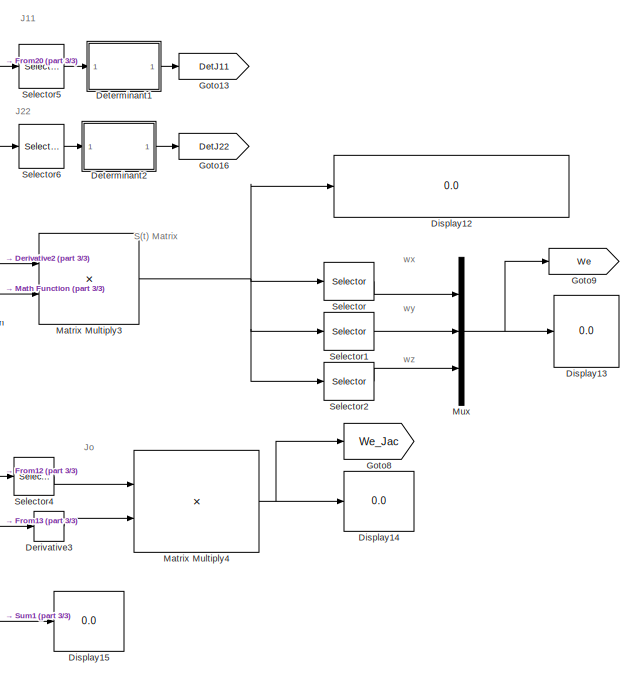
[diagram: root canvas - part 1/3, right side, full height]
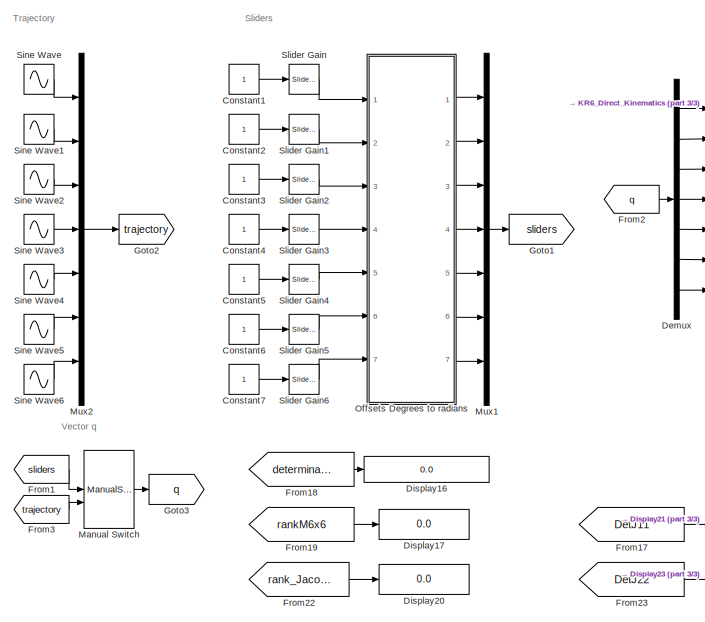
[diagram: root canvas - part 2/3, left side, full height]
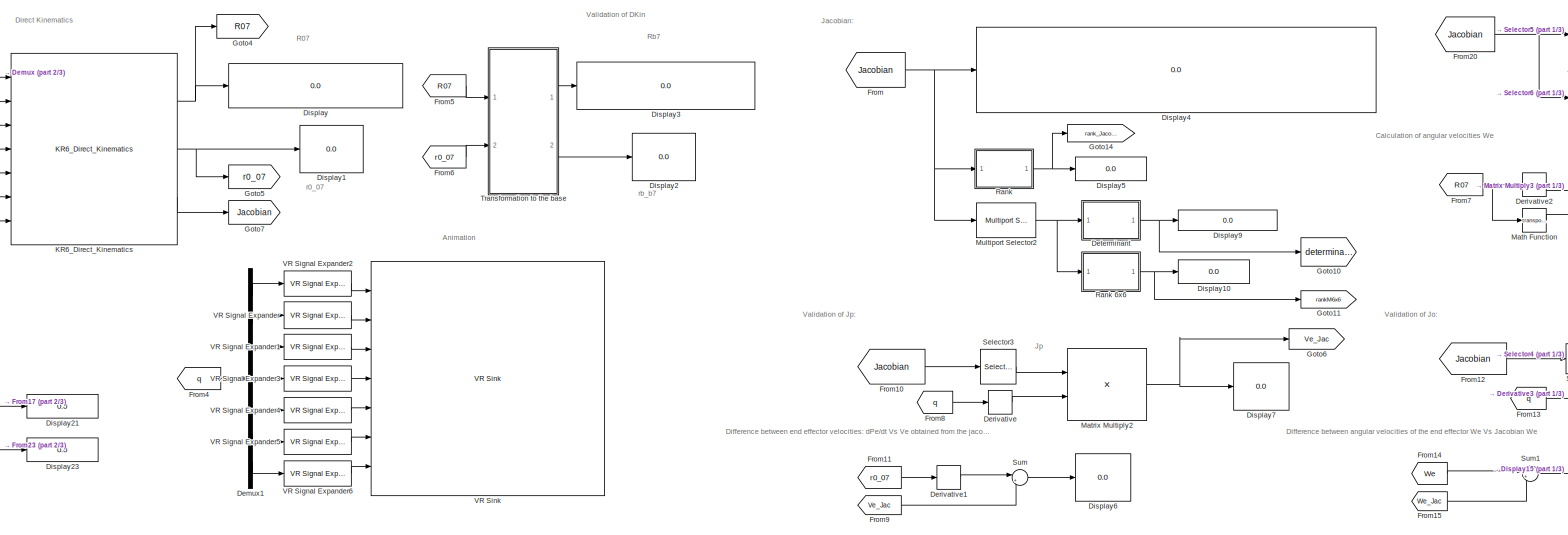
[diagram: root canvas - part 3/3, center side, full height]
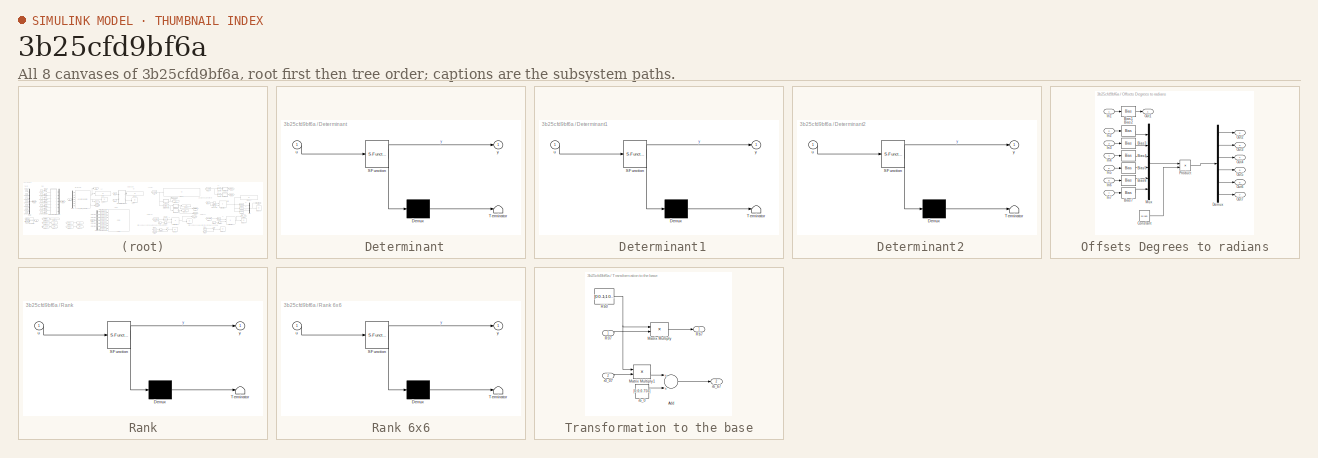
[diagram: thumbnail index - all 8 canvases of the model, root first then tree order]
MODEL slx_3b25cfd9bf6a
KIND model
CONFIG AbsTol = auto
CONFIG EnableMultiTasking = off
CONFIG FixedStep = 1e-6
CONFIG MaxStep = auto
CONFIG MinStep = auto
CONFIG RelTol = 1e-3
CONFIG SampleTimeConstraint = Unconstrained
CONFIG Solver = VariableStepAuto
CONFIG SolverName = VariableStepAuto
CONFIG StartTime = 0.0
CONFIG StopTime = inf
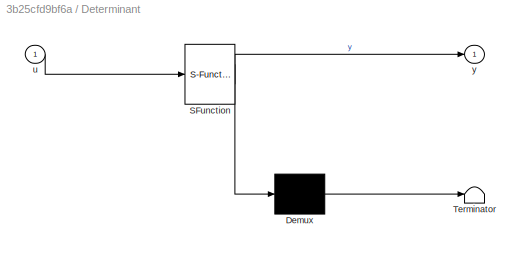
BLOCK [SubSystem]  Determinant
  ErrorFcn = Stateflow.Translate.translate
  PermitHierarchicalResolution = ExplicitOnly
  Ports = [1, 1]
  RequestExecContextInheritance = off
  SFBlockType = MATLAB Function
  TreatAsAtomicUnit = on
BLOCK [Demux]  Determinant/ Demux 
  Outputs = 1
  Ports = [1, 1]
BLOCK [S-Function]  Determinant/ SFunction 
  EnableBusSupport = on
  FunctionName = sf_sfun
  PortCounts = [1 2]
  Ports = [1, 2]
  SFcnIsStateOwnerBlock = off
  SFunctionDeploymentMode = off
  Tag = Stateflow S-Function KR6_JacobianValidation 1
BLOCK [Terminator]  Determinant/ Terminator 
BLOCK [Inport]  Determinant/u
  IconDisplay = Port number
BLOCK [Outport]  Determinant/y
  IconDisplay = Port number
BLOCK [SubSystem]  Determinant1
  ErrorFcn = Stateflow.Translate.translate
  PermitHierarchicalResolution = ExplicitOnly
  Ports = [1, 1]
  RequestExecContextInheritance = off
  SFBlockType = MATLAB Function
  TreatAsAtomicUnit = on
BLOCK [Demux]  Determinant1/ Demux 
  Outputs = 1
  Ports = [1, 1]
BLOCK [S-Function]  Determinant1/ SFunction 
  EnableBusSupport = on
  FunctionName = sf_sfun
  PortCounts = [1 2]
  Ports = [1, 2]
  SFcnIsStateOwnerBlock = off
  SFunctionDeploymentMode = off
  Tag = Stateflow S-Function KR6_JacobianValidation 5
BLOCK [Terminator]  Determinant1/ Terminator 
BLOCK [Inport]  Determinant1/u
  IconDisplay = Port number
BLOCK [Outport]  Determinant1/y
  IconDisplay = Port number
BLOCK [SubSystem]  Determinant2
  ErrorFcn = Stateflow.Translate.translate
  PermitHierarchicalResolution = ExplicitOnly
  Ports = [1, 1]
  RequestExecContextInheritance = off
  SFBlockType = MATLAB Function
  TreatAsAtomicUnit = on
BLOCK [Demux]  Determinant2/ Demux 
  Outputs = 1
  Ports = [1, 1]
BLOCK [S-Function]  Determinant2/ SFunction 
  EnableBusSupport = on
  FunctionName = sf_sfun
  PortCounts = [1 2]
  Ports = [1, 2]
  SFcnIsStateOwnerBlock = off
  SFunctionDeploymentMode = off
  Tag = Stateflow S-Function KR6_JacobianValidation 7
BLOCK [Terminator]  Determinant2/ Terminator 
BLOCK [Inport]  Determinant2/u
  IconDisplay = Port number
BLOCK [Outport]  Determinant2/y
  IconDisplay = Port number
BLOCK [Constant] Constant1
BLOCK [Constant] Constant2
BLOCK [Constant] Constant3
BLOCK [Constant] Constant4
BLOCK [Constant] Constant5
BLOCK [Constant] Constant6
BLOCK [Constant] Constant7
BLOCK [Demux] Demux
  DisplayOption = bar
  Outputs = 7
  Ports = [1, 7]
BLOCK [Demux] Demux1
  DisplayOption = bar
  Outputs = 7
  Ports = [1, 7]
BLOCK [Derivative] Derivative
BLOCK [Derivative] Derivative1
BLOCK [Derivative] Derivative2
BLOCK [Derivative] Derivative3
BLOCK [Display] Display
  Decimation = 2
  Ports = [1]
BLOCK [Display] Display1
  Decimation = 1
  Ports = [1]
BLOCK [Display] Display10
  Decimation = 1
  Ports = [1]
BLOCK [Display] Display12
  Decimation = 1
  Ports = [1]
BLOCK [Display] Display13
  Decimation = 1
  Ports = [1]
BLOCK [Display] Display14
  Decimation = 1
  Ports = [1]
BLOCK [Display] Display15
  Decimation = 1
  Ports = [1]
BLOCK [Display] Display16
  Decimation = 1
  Format = long
  Ports = [1]
BLOCK [Display] Display17
  Decimation = 1
  Ports = [1]
BLOCK [Display] Display2
  Decimation = 1
  Ports = [1]
BLOCK [Display] Display20
  Decimation = 1
  Ports = [1]
BLOCK [Display] Display21
  Decimation = 1
  Ports = [1]
BLOCK [Display] Display23
  Decimation = 1
  Ports = [1]
BLOCK [Display] Display3
  Decimation = 1
  Ports = [1]
BLOCK [Display] Display4
  Decimation = 1
  Ports = [1]
BLOCK [Display] Display5
  Decimation = 1
  Ports = [1]
BLOCK [Display] Display6
  Decimation = 1
  Ports = [1]
BLOCK [Display] Display7
  Decimation = 1
  Ports = [1]
BLOCK [Display] Display9
  Decimation = 1
  Format = long
  Ports = [1]
BLOCK [From] From
  GotoTag = Jacobian
BLOCK [From] From1
  GotoTag = sliders
BLOCK [From] From10
  GotoTag = Jacobian
BLOCK [From] From11
  GotoTag = r0_07
BLOCK [From] From12
  GotoTag = Jacobian
BLOCK [From] From13
  GotoTag = q
BLOCK [From] From14
  GotoTag = We
BLOCK [From] From15
  GotoTag = We_Jac
BLOCK [From] From17
  GotoTag = DetJ11
BLOCK [From] From18
  GotoTag = determinant
BLOCK [From] From19
  GotoTag = rankM6x6
BLOCK [From] From2
  GotoTag = q
BLOCK [From] From20
  GotoTag = Jacobian
BLOCK [From] From22
  GotoTag = rank_Jacobian
BLOCK [From] From23
  GotoTag = DetJ22
BLOCK [From] From3
  GotoTag = trajectory
BLOCK [From] From4
  GotoTag = q
BLOCK [From] From5
  GotoTag = R07
BLOCK [From] From6
  GotoTag = r0_07
BLOCK [From] From7
  GotoTag = R07
BLOCK [From] From8
  GotoTag = q
BLOCK [From] From9
  GotoTag = Ve_Jac
BLOCK [Goto] Goto1
  GotoTag = sliders
BLOCK [Goto] Goto10
  GotoTag = determinant
BLOCK [Goto] Goto11
  GotoTag = rankM6x6
BLOCK [Goto] Goto13
  GotoTag = DetJ11
BLOCK [Goto] Goto14
  GotoTag = rank_Jacobian
BLOCK [Goto] Goto16
  GotoTag = DetJ22
BLOCK [Goto] Goto2
  GotoTag = trajectory
BLOCK [Goto] Goto3
  GotoTag = q
BLOCK [Goto] Goto4
  GotoTag = R07
BLOCK [Goto] Goto5
  GotoTag = r0_07
BLOCK [Goto] Goto6
  GotoTag = Ve_Jac
BLOCK [Goto] Goto7
  GotoTag = Jacobian
BLOCK [Goto] Goto8
  GotoTag = We_Jac
BLOCK [Goto] Goto9
  GotoTag = We
BLOCK [Reference] KR6_Direct_Kinematics  REF=KR6_Lib/KR6_Direct_Kinematics
  Ports = [7, 3]
  SourceBlock = KR6_Lib/KR6_Direct_Kinematics
  SourceType = SubSystem
BLOCK [ManualSwitch] Manual Switch
BLOCK [Math] Math Function
  Operator = transpose
  Ports = [1, 1]
BLOCK [Product] Matrix Multiply2
  InputSameDT = off
  Multiplication = Matrix(*)
  OutDataTypeStr = Inherit: Inherit via internal rule
  Ports = [2, 1]
  RndMeth = Floor
  SaturateOnIntegerOverflow = off
BLOCK [Product] Matrix Multiply3
  InputSameDT = off
  Multiplication = Matrix(*)
  OutDataTypeStr = Inherit: Inherit via internal rule
  Ports = [2, 1]
  RndMeth = Floor
  SaturateOnIntegerOverflow = off
BLOCK [Product] Matrix Multiply4
  InputSameDT = off
  Multiplication = Matrix(*)
  OutDataTypeStr = Inherit: Inherit via internal rule
  Ports = [2, 1]
  RndMeth = Floor
  SaturateOnIntegerOverflow = off
BLOCK [Reference] Multiport Selector2  REF=dspindex/Multiport
Selector
  Ports = [1, 1]
  SourceBlock = dspindex/Multiport\nSelector
  SourceProductBaseCode = DS
  SourceProductName = DSP System Toolbox
  SourceType = Multiport Selector
BLOCK [Mux] Mux
  DisplayOption = bar
  Inputs = 3
  Ports = [3, 1]
BLOCK [Mux] Mux1
  DisplayOption = bar
  Inputs = 7
  Ports = [7, 1]
BLOCK [Mux] Mux2
  DisplayOption = bar
  Inputs = 7
  Ports = [7, 1]
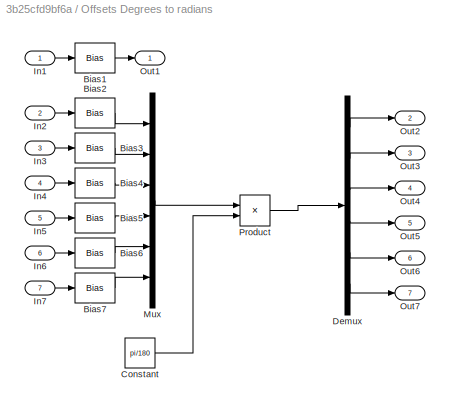
BLOCK [SubSystem] Offsets Degrees to radians
  Ports = [7, 7]
  RequestExecContextInheritance = off
BLOCK [Bias] Offsets Degrees to radians/Bias1
  SaturateOnIntegerOverflow = off
BLOCK [Bias] Offsets Degrees to radians/Bias2
  SaturateOnIntegerOverflow = off
BLOCK [Bias] Offsets Degrees to radians/Bias3
  SaturateOnIntegerOverflow = off
BLOCK [Bias] Offsets Degrees to radians/Bias4
  Bias = -90
  SaturateOnIntegerOverflow = off
BLOCK [Bias] Offsets Degrees to radians/Bias5
  SaturateOnIntegerOverflow = off
BLOCK [Bias] Offsets Degrees to radians/Bias6
  SaturateOnIntegerOverflow = off
BLOCK [Bias] Offsets Degrees to radians/Bias7
  Bias = 180
  SaturateOnIntegerOverflow = off
BLOCK [Constant] Offsets Degrees to radians/Constant
  Value = pi/180
BLOCK [Demux] Offsets Degrees to radians/Demux
  DisplayOption = bar
  Outputs = 6
  Ports = [1, 6]
BLOCK [Inport] Offsets Degrees to radians/In1
  IconDisplay = Port number
BLOCK [Inport] Offsets Degrees to radians/In2
  IconDisplay = Port number
  Port = 2
BLOCK [Inport] Offsets Degrees to radians/In3
  IconDisplay = Port number
  Port = 3
BLOCK [Inport] Offsets Degrees to radians/In4
  IconDisplay = Port number
  Port = 4
BLOCK [Inport] Offsets Degrees to radians/In5
  IconDisplay = Port number
  Port = 5
BLOCK [Inport] Offsets Degrees to radians/In6
  IconDisplay = Port number
  Port = 6
BLOCK [Inport] Offsets Degrees to radians/In7
  IconDisplay = Port number
  Port = 7
BLOCK [Mux] Offsets Degrees to radians/Mux
  DisplayOption = bar
  Inputs = 6
  Ports = [6, 1]
BLOCK [Outport] Offsets Degrees to radians/Out1
  IconDisplay = Port number
BLOCK [Outport] Offsets Degrees to radians/Out2
  IconDisplay = Port number
  Port = 2
BLOCK [Outport] Offsets Degrees to radians/Out3
  IconDisplay = Port number
  Port = 3
BLOCK [Outport] Offsets Degrees to radians/Out4
  IconDisplay = Port number
  Port = 4
BLOCK [Outport] Offsets Degrees to radians/Out5
  IconDisplay = Port number
  Port = 5
BLOCK [Outport] Offsets Degrees to radians/Out6
  IconDisplay = Port number
  Port = 6
BLOCK [Outport] Offsets Degrees to radians/Out7
  IconDisplay = Port number
  Port = 7
BLOCK [Product] Offsets Degrees to radians/Product
  InputSameDT = off
  OutDataTypeStr = Inherit: Inherit via internal rule
  Ports = [2, 1]
  RndMeth = Floor
  SaturateOnIntegerOverflow = off
BLOCK [SubSystem] Rank
  ErrorFcn = Stateflow.Translate.translate
  PermitHierarchicalResolution = ExplicitOnly
  Ports = [1, 1]
  RequestExecContextInheritance = off
  SFBlockType = MATLAB Function
  TreatAsAtomicUnit = on
BLOCK [SubSystem] Rank 6x6
  ErrorFcn = Stateflow.Translate.translate
  PermitHierarchicalResolution = ExplicitOnly
  Ports = [1, 1]
  RequestExecContextInheritance = off
  SFBlockType = MATLAB Function
  TreatAsAtomicUnit = on
BLOCK [Demux] Rank 6x6/ Demux 
  Outputs = 1
  Ports = [1, 1]
BLOCK [S-Function] Rank 6x6/ SFunction 
  EnableBusSupport = on
  FunctionName = sf_sfun
  PortCounts = [1 2]
  Ports = [1, 2]
  SFcnIsStateOwnerBlock = off
  SFunctionDeploymentMode = off
  Tag = Stateflow S-Function KR6_JacobianValidation 3
BLOCK [Terminator] Rank 6x6/ Terminator 
BLOCK [Inport] Rank 6x6/u
  IconDisplay = Port number
BLOCK [Outport] Rank 6x6/y
  IconDisplay = Port number
BLOCK [Demux] Rank/ Demux 
  Outputs = 1
  Ports = [1, 1]
BLOCK [S-Function] Rank/ SFunction 
  EnableBusSupport = on
  FunctionName = sf_sfun
  PortCounts = [1 2]
  Ports = [1, 2]
  SFcnIsStateOwnerBlock = off
  SFunctionDeploymentMode = off
  Tag = Stateflow S-Function KR6_JacobianValidation 2
BLOCK [Terminator] Rank/ Terminator 
BLOCK [Inport] Rank/u
  IconDisplay = Port number
BLOCK [Outport] Rank/y
  IconDisplay = Port number
BLOCK [Selector] Selector
  IndexOptions = Index vector (dialog),Index vector (dialog)
  Indices = [3],[2]
  InputPortWidth = 3
  NumberOfDimensions = 2
  OutputSizes = 1,1
  Ports = [1, 1]
BLOCK [Selector] Selector1
  IndexOptions = Index vector (dialog),Index vector (dialog)
  Indices = [1],[3]
  InputPortWidth = 3
  NumberOfDimensions = 2
  OutputSizes = 1,1
  Ports = [1, 1]
BLOCK [Selector] Selector2
  IndexOptions = Index vector (dialog),Index vector (dialog)
  Indices = [2],[1]
  InputPortWidth = 3
  NumberOfDimensions = 2
  OutputSizes = 1,1
  Ports = [1, 1]
BLOCK [Selector] Selector3
  IndexOptions = Index vector (dialog),Index vector (dialog)
  Indices = 1:3,1:7
  InputPortWidth = 3
  NumberOfDimensions = 2
  OutputSizes = 1,1
  Ports = [1, 1]
BLOCK [Selector] Selector4
  IndexOptions = Index vector (dialog),Index vector (dialog)
  Indices = 4:6,1:7
  InputPortWidth = 3
  NumberOfDimensions = 2
  OutputSizes = 1,1
  Ports = [1, 1]
BLOCK [Selector] Selector5
  IndexOptions = Index vector (dialog),Index vector (dialog)
  Indices = 1:3,2:4
  InputPortWidth = 3
  NumberOfDimensions = 2
  OutputSizes = 1,1
  Ports = [1, 1]
BLOCK [Selector] Selector6
  IndexOptions = Index vector (dialog),Index vector (dialog)
  Indices = 4:6,5:7
  InputPortWidth = 3
  NumberOfDimensions = 2
  OutputSizes = 1,1
  Ports = [1, 1]
BLOCK [Sin] Sine Wave
  Frequency = 0.5
  Ports = [0, 1]
  SampleTime = 0
BLOCK [Sin] Sine Wave1
  Amplitude = 3
  Frequency = 0.5
  Ports = [0, 1]
  SampleTime = 0
BLOCK [Sin] Sine Wave2
  Bias = -1.5
  Frequency = 0.5
  Ports = [0, 1]
  SampleTime = 0
BLOCK [Sin] Sine Wave3
  Amplitude = 0.5
  Frequency = 0.5
  Ports = [0, 1]
  SampleTime = 0
BLOCK [Sin] Sine Wave4
  Frequency = 0.5
  Ports = [0, 1]
  SampleTime = 0
BLOCK [Sin] Sine Wave5
  Amplitude = 1.5
  Frequency = 0.5
  Ports = [0, 1]
  SampleTime = 0
BLOCK [Sin] Sine Wave6
  Amplitude = 1.5
  Frequency = 0.5
  Ports = [0, 1]
  SampleTime = 0
BLOCK [Reference] Slider Gain  REF=simulink/Math
Operations/Slider
Gain
  Ports = [1, 1]
  SourceBlock = simulink/Math\nOperations/Slider\nGain
  SourceProductBaseCode = SL
  SourceProductName = Simulink
  SourceType = Slider Gain
BLOCK [Reference] Slider Gain1  REF=simulink/Math
Operations/Slider
Gain
  Ports = [1, 1]
  SourceBlock = simulink/Math\nOperations/Slider\nGain
  SourceProductBaseCode = SL
  SourceProductName = Simulink
  SourceType = Slider Gain
BLOCK [Reference] Slider Gain2  REF=simulink/Math
Operations/Slider
Gain
  Ports = [1, 1]
  SourceBlock = simulink/Math\nOperations/Slider\nGain
  SourceProductBaseCode = SL
  SourceProductName = Simulink
  SourceType = Slider Gain
BLOCK [Reference] Slider Gain3  REF=simulink/Math
Operations/Slider
Gain
  Ports = [1, 1]
  SourceBlock = simulink/Math\nOperations/Slider\nGain
  SourceProductBaseCode = SL
  SourceProductName = Simulink
  SourceType = Slider Gain
BLOCK [Reference] Slider Gain4  REF=simulink/Math
Operations/Slider
Gain
  Ports = [1, 1]
  SourceBlock = simulink/Math\nOperations/Slider\nGain
  SourceProductBaseCode = SL
  SourceProductName = Simulink
  SourceType = Slider Gain
BLOCK [Reference] Slider Gain5  REF=simulink/Math
Operations/Slider
Gain
  Ports = [1, 1]
  SourceBlock = simulink/Math\nOperations/Slider\nGain
  SourceProductBaseCode = SL
  SourceProductName = Simulink
  SourceType = Slider Gain
BLOCK [Reference] Slider Gain6  REF=simulink/Math
Operations/Slider
Gain
  Ports = [1, 1]
  SourceBlock = simulink/Math\nOperations/Slider\nGain
  SourceProductBaseCode = SL
  SourceProductName = Simulink
  SourceType = Slider Gain
BLOCK [Sum] Sum
  IconShape = round
  InputSameDT = off
  Inputs = |+-
  OutDataTypeStr = Inherit: Inherit via internal rule
  Ports = [2, 1]
  SaturateOnIntegerOverflow = off
BLOCK [Sum] Sum1
  IconShape = round
  InputSameDT = off
  Inputs = |+-
  OutDataTypeStr = Inherit: Inherit via internal rule
  Ports = [2, 1]
  SaturateOnIntegerOverflow = off
BLOCK [SubSystem] Transformation to the base
  Ports = [2, 2]
  RequestExecContextInheritance = off
BLOCK [Sum] Transformation to the base/Add
  InputSameDT = off
  OutDataTypeStr = Inherit: Inherit via internal rule
  Ports = [2, 1]
  SaturateOnIntegerOverflow = off
BLOCK [Product] Transformation to the base/Matrix Multiply
  InputSameDT = off
  Multiplication = Matrix(*)
  OutDataTypeStr = Inherit: Inherit via internal rule
  Ports = [2, 1]
  RndMeth = Floor
  SaturateOnIntegerOverflow = off
BLOCK [Product] Transformation to the base/Matrix Multiply1
  InputSameDT = off
  Multiplication = Matrix(*)
  OutDataTypeStr = Inherit: Inherit via internal rule
  Ports = [2, 1]
  RndMeth = Floor
  SaturateOnIntegerOverflow = off
BLOCK [Inport] Transformation to the base/R07
  IconDisplay = Port number
BLOCK [Constant] Transformation to the base/Rb0
  Value = [0 0 -1;1 0 0; 0 -1 0]
BLOCK [Outport] Transformation to the base/Rb7
  IconDisplay = Port number
BLOCK [Inport] Transformation to the base/r0_07
  IconDisplay = Port number
  Port = 2
BLOCK [Constant] Transformation to the base/rb_0
  Value = [0;0;0.756]
BLOCK [Outport] Transformation to the base/rb_b7
  IconDisplay = Port number
  Port = 2
BLOCK [Reference] VR Signal Expander  REF=vrlib/VR Signal Expander
  Ports = [1, 1]
  SourceBlock = vrlib/VR Signal Expander
  SourceProductBaseCode = VR
  SourceProductName = Simulink 3D Animation
  SourceType = VR Signal Expander
BLOCK [Reference] VR Signal Expander1  REF=vrlib/VR Signal Expander
  Ports = [1, 1]
  SourceBlock = vrlib/VR Signal Expander
  SourceProductBaseCode = VR
  SourceProductName = Simulink 3D Animation
  SourceType = VR Signal Expander
BLOCK [Reference] VR Signal Expander2  REF=vrlib/VR Signal Expander
  Ports = [1, 1]
  SourceBlock = vrlib/VR Signal Expander
  SourceProductBaseCode = VR
  SourceProductName = Simulink 3D Animation
  SourceType = VR Signal Expander
BLOCK [Reference] VR Signal Expander3  REF=vrlib/VR Signal Expander
  Ports = [1, 1]
  SourceBlock = vrlib/VR Signal Expander
  SourceProductBaseCode = VR
  SourceProductName = Simulink 3D Animation
  SourceType = VR Signal Expander
BLOCK [Reference] VR Signal Expander4  REF=vrlib/VR Signal Expander
  Ports = [1, 1]
  SourceBlock = vrlib/VR Signal Expander
  SourceProductBaseCode = VR
  SourceProductName = Simulink 3D Animation
  SourceType = VR Signal Expander
BLOCK [Reference] VR Signal Expander5  REF=vrlib/VR Signal Expander
  Ports = [1, 1]
  SourceBlock = vrlib/VR Signal Expander
  SourceProductBaseCode = VR
  SourceProductName = Simulink 3D Animation
  SourceType = VR Signal Expander
BLOCK [Reference] VR Signal Expander6  REF=vrlib/VR Signal Expander
  Ports = [1, 1]
  SourceBlock = vrlib/VR Signal Expander
  SourceProductBaseCode = VR
  SourceProductName = Simulink 3D Animation
  SourceType = VR Signal Expander
BLOCK [Reference] VR Sink  REF=vrlib/VR Sink
  InstantiateOnLoad = on
  Ports = [7]
  SourceBlock = vrlib/VR Sink
  SourceProductBaseCode = VR
  SourceProductName = Simulink 3D Animation
  SourceType = Virtual Reality Sink
ANNOTATION (root): wx
ANNOTATION (root): wy
ANNOTATION (root): wz
ANNOTATION (root): S(t) Matrix
ANNOTATION (root): Animation
ANNOTATION (root): Difference between angular velocities of the end effector We Vs Jacobian We
ANNOTATION (root): Difference between end effector velocities: dPe/dt Vs Ve obtained from the jacobian
ANNOTATION (root): Direct Kinematics
ANNOTATION (root): Vector q
ANNOTATION (root): Calculation of angular velocities We
ANNOTATION (root): J11
ANNOTATION (root): J22
ANNOTATION (root): Jo
ANNOTATION (root): Jp
ANNOTATION (root): R07
ANNOTATION (root): Rb7
ANNOTATION (root): Sliders
ANNOTATION (root): Trajectory
ANNOTATION (root): Validation of DKin
ANNOTATION (root): r0_07
ANNOTATION (root): rb_b7
ANNOTATION (root): Jacobian:
ANNOTATION (root): Validation of Jo:
ANNOTATION (root): Validation of Jp:
LINE  Determinant1:1 -> Goto13:1
LINE  Determinant2:1 -> Goto16:1
NET  Determinant:1 -> Display9:1, Goto10:1
LINE Constant1:1 -> Slider Gain:1
LINE Constant2:1 -> Slider Gain1:1
LINE Constant3:1 -> Slider Gain2:1
LINE Constant4:1 -> Slider Gain3:1
LINE Constant5:1 -> Slider Gain4:1
LINE Constant6:1 -> Slider Gain5:1
LINE Constant7:1 -> Slider Gain6:1
LINE Demux1:1 -> VR Signal Expander2:1
LINE Demux1:2 -> VR Signal Expander:1
LINE Demux1:3 -> VR Signal Expander1:1
LINE Demux1:4 -> VR Signal Expander3:1
LINE Demux1:5 -> VR Signal Expander4:1
LINE Demux1:6 -> VR Signal Expander5:1
LINE Demux1:7 -> VR Signal Expander6:1
LINE Demux:1 -> KR6_Direct_Kinematics:1
LINE Demux:2 -> KR6_Direct_Kinematics:2
LINE Demux:3 -> KR6_Direct_Kinematics:3
LINE Demux:4 -> KR6_Direct_Kinematics:4
LINE Demux:5 -> KR6_Direct_Kinematics:5
LINE Demux:6 -> KR6_Direct_Kinematics:6
LINE Demux:7 -> KR6_Direct_Kinematics:7
LINE Derivative1:1 -> Sum:1
LINE Derivative2:1 -> Matrix Multiply3:1
LINE Derivative3:1 -> Matrix Multiply4:2
LINE Derivative:1 -> Matrix Multiply2:2
LINE From10:1 -> Selector3:1
LINE From11:1 -> Derivative1:1
LINE From12:1 -> Selector4:1
LINE From13:1 -> Derivative3:1
LINE From14:1 -> Sum1:1
LINE From15:1 -> Sum1:2
LINE From17:1 -> Display21:1
LINE From18:1 -> Display16:1
LINE From19:1 -> Display17:1
LINE From1:1 -> Manual Switch:1
NET From20:1 -> Selector5:1, Selector6:1
LINE From22:1 -> Display20:1
LINE From23:1 -> Display23:1
LINE From2:1 -> Demux:1
LINE From3:1 -> Manual Switch:2
LINE From4:1 -> Demux1:1
LINE From5:1 -> Transformation to the base:1
LINE From6:1 -> Transformation to the base:2
NET From7:1 -> Derivative2:1, Math Function:1
LINE From8:1 -> Derivative:1
LINE From9:1 -> Sum:2
NET From:1 -> Display4:1, Multiport Selector2:1, Rank:1
NET KR6_Direct_Kinematics:1 -> Display:1, Goto4:1
NET KR6_Direct_Kinematics:2 -> Display1:1, Goto5:1
LINE KR6_Direct_Kinematics:3 -> Goto7:1
LINE Manual Switch:1 -> Goto3:1
LINE Math Function:1 -> Matrix Multiply3:2
NET Matrix Multiply2:1 -> Display7:1, Goto6:1
NET Matrix Multiply3:1 -> Display12:1, Selector1:1, Selector2:1, Selector:1
NET Matrix Multiply4:1 -> Display14:1, Goto8:1
NET Multiport Selector2:1 ->  Determinant:1, Rank 6x6:1
LINE Mux1:1 -> Goto1:1
LINE Mux2:1 -> Goto2:1
NET Mux:1 -> Display13:1, Goto9:1
LINE Offsets Degrees to radians/Bias1:1 -> Offsets Degrees to radians/Out1:1
LINE Offsets Degrees to radians/Bias2:1 -> Offsets Degrees to radians/Mux:1
LINE Offsets Degrees to radians/Bias3:1 -> Offsets Degrees to radians/Mux:2
LINE Offsets Degrees to radians/Bias4:1 -> Offsets Degrees to radians/Mux:3
LINE Offsets Degrees to radians/Bias5:1 -> Offsets Degrees to radians/Mux:4
LINE Offsets Degrees to radians/Bias6:1 -> Offsets Degrees to radians/Mux:5
LINE Offsets Degrees to radians/Bias7:1 -> Offsets Degrees to radians/Mux:6
LINE Offsets Degrees to radians/Constant:1 -> Offsets Degrees to radians/Product:2
LINE Offsets Degrees to radians/Demux:1 -> Offsets Degrees to radians/Out2:1
LINE Offsets Degrees to radians/Demux:2 -> Offsets Degrees to radians/Out3:1
LINE Offsets Degrees to radians/Demux:3 -> Offsets Degrees to radians/Out4:1
LINE Offsets Degrees to radians/Demux:4 -> Offsets Degrees to radians/Out5:1
LINE Offsets Degrees to radians/Demux:5 -> Offsets Degrees to radians/Out6:1
LINE Offsets Degrees to radians/Demux:6 -> Offsets Degrees to radians/Out7:1
LINE Offsets Degrees to radians/In1:1 -> Offsets Degrees to radians/Bias1:1
LINE Offsets Degrees to radians/In2:1 -> Offsets Degrees to radians/Bias2:1
LINE Offsets Degrees to radians/In3:1 -> Offsets Degrees to radians/Bias3:1
LINE Offsets Degrees to radians/In4:1 -> Offsets Degrees to radians/Bias4:1
LINE Offsets Degrees to radians/In5:1 -> Offsets Degrees to radians/Bias5:1
LINE Offsets Degrees to radians/In6:1 -> Offsets Degrees to radians/Bias6:1
LINE Offsets Degrees to radians/In7:1 -> Offsets Degrees to radians/Bias7:1
LINE Offsets Degrees to radians/Mux:1 -> Offsets Degrees to radians/Product:1
LINE Offsets Degrees to radians/Product:1 -> Offsets Degrees to radians/Demux:1
LINE Offsets Degrees to radians:1 -> Mux1:1
LINE Offsets Degrees to radians:2 -> Mux1:2
LINE Offsets Degrees to radians:3 -> Mux1:3
LINE Offsets Degrees to radians:4 -> Mux1:4
LINE Offsets Degrees to radians:5 -> Mux1:5
LINE Offsets Degrees to radians:6 -> Mux1:6
LINE Offsets Degrees to radians:7 -> Mux1:7
NET Rank 6x6:1 -> Display10:1, Goto11:1
NET Rank:1 -> Display5:1, Goto14:1
LINE Selector1:1 -> Mux:2
LINE Selector2:1 -> Mux:3
LINE Selector3:1 -> Matrix Multiply2:1
LINE Selector4:1 -> Matrix Multiply4:1
LINE Selector5:1 ->  Determinant1:1
LINE Selector6:1 ->  Determinant2:1
LINE Selector:1 -> Mux:1
LINE Sine Wave1:1 -> Mux2:2
LINE Sine Wave2:1 -> Mux2:3
LINE Sine Wave3:1 -> Mux2:4
LINE Sine Wave4:1 -> Mux2:5
LINE Sine Wave5:1 -> Mux2:6
LINE Sine Wave6:1 -> Mux2:7
LINE Sine Wave:1 -> Mux2:1
LINE Slider Gain1:1 -> Offsets Degrees to radians:2
LINE Slider Gain2:1 -> Offsets Degrees to radians:3
LINE Slider Gain3:1 -> Offsets Degrees to radians:4
LINE Slider Gain4:1 -> Offsets Degrees to radians:5
LINE Slider Gain5:1 -> Offsets Degrees to radians:6
LINE Slider Gain6:1 -> Offsets Degrees to radians:7
LINE Slider Gain:1 -> Offsets Degrees to radians:1
LINE Sum1:1 -> Display15:1
LINE Sum:1 -> Display6:1
LINE Transformation to the base/Add:1 -> Transformation to the base/rb_b7:1
LINE Transformation to the base/Matrix Multiply1:1 -> Transformation to the base/Add:1
LINE Transformation to the base/Matrix Multiply:1 -> Transformation to the base/Rb7:1
LINE Transformation to the base/R07:1 -> Transformation to the base/Matrix Multiply:2
NET Transformation to the base/Rb0:1 -> Transformation to the base/Matrix Multiply1:1, Transformation to the base/Matrix Multiply:1
LINE Transformation to the base/r0_07:1 -> Transformation to the base/Matrix Multiply1:2
LINE Transformation to the base/rb_0:1 -> Transformation to the base/Add:2
LINE Transformation to the base:1 -> Display3:1
LINE Transformation to the base:2 -> Display2:1
LINE VR Signal Expander1:1 -> VR Sink:3
LINE VR Signal Expander2:1 -> VR Sink:1
LINE VR Signal Expander3:1 -> VR Sink:4
LINE VR Signal Expander4:1 -> VR Sink:5
LINE VR Signal Expander5:1 -> VR Sink:6
LINE VR Signal Expander6:1 -> VR Sink:7
LINE VR Signal Expander:1 -> VR Sink:2
note: NET lines group one-source signal fan-out (src -> all destinations, sorted); 1:1 wires keep LINE
CHART  Determinant states=1 transitions=1
  STATE_LABEL 'eML_blk_kernel()'
  STATE_LABEL 'SCRIPT:\nfunction y = fcn(u)\n\ny = det(u);\n%determinante do jacobiano'
CHART Rank states=1 transitions=1
  STATE_LABEL 'eML_blk_kernel()'
  STATE_LABEL 'SCRIPT:\nfunction y = fcn(u)\n\ny = rank(u);\n%rank do jacobiano'
CHART Rank 6x6 states=1 transitions=1
  STATE_LABEL 'eML_blk_kernel()'
  STATE_LABEL 'SCRIPT:\nfunction y = fcn(u)\n\ny = rank(u);\n%rank do jacobiano'
CHART  Determinant1 states=1 transitions=1
  STATE_LABEL 'eML_blk_kernel()'
  STATE_LABEL 'SCRIPT:\nfunction y = fcn(u)\n\ny = det(u);\n%determinante do jacobiano'
CHART  Determinant2 states=1 transitions=1
  STATE_LABEL 'eML_blk_kernel()'
  STATE_LABEL 'SCRIPT:\nfunction y = fcn(u)\n\ny = det(u);\n%determinante do jacobiano'
